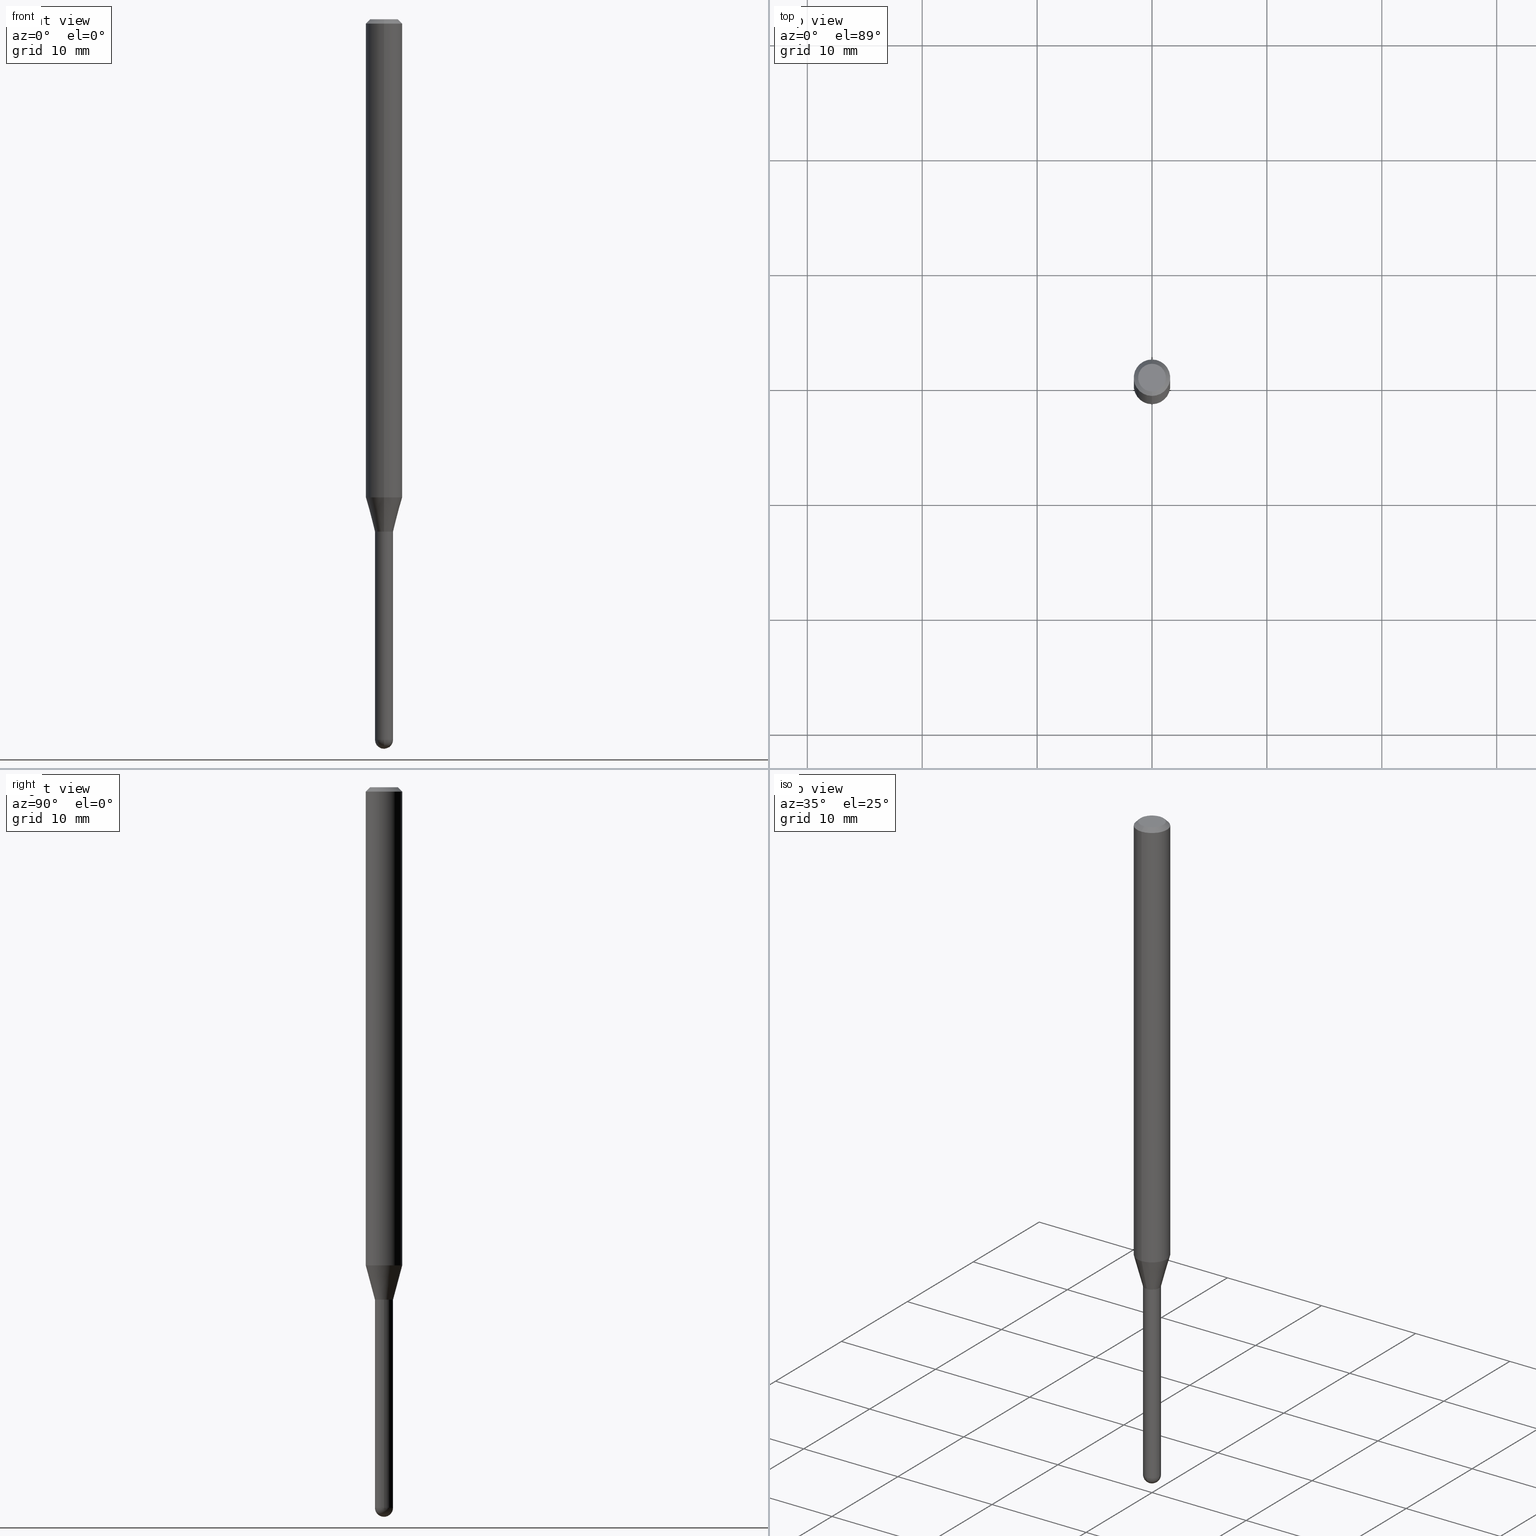
[diagram: canonical four-view strip — front | top / right | iso, engineering-drawing reading convention]
A machine part, canonical four-view strip (front | top / right | iso — engineering-drawing reading convention). The complete STEP part file that produces these views, byte-faithful:
ISO-10303-21;
HEADER;
FILE_DESCRIPTION (( 'STEP AP203' ),
    '1' );
FILE_NAME ('01568.STEP',
    '2024-03-07T19:40:27',
    ( '' ),
    ( '' ),
    'SwSTEP 2.0',
    'SolidWorks 2023',
    '' );
FILE_SCHEMA (( 'CONFIG_CONTROL_DESIGN' ));
ENDSEC;

DATA;
#1 = PERSON_AND_ORGANIZATION_ROLE ( 'design_owner' ) ;
#2 = CARTESIAN_POINT ( 'NONE',  ( 0.03099999999999999978, -6.347513074016838623E-15, -1.756000000000000005 ) ) ;
#3 = ADVANCED_FACE ( 'NONE', ( #134 ), #387, .T. ) ;
#4 = CARTESIAN_POINT ( 'NONE',  ( 0.000000000000000000, 0.000000000000000000, 0.000000000000000000 ) ) ;
#5 = APPROVAL_STATUS ( 'not_yet_approved' ) ;
#6 = AXIS2_PLACEMENT_3D ( 'NONE', #301, #372, #185 ) ;
#7 = CARTESIAN_POINT ( 'NONE',  ( 6.035211466974647334E-29, -8.624263830681084699E-15, -2.469000000000000306 ) ) ;
#8 = CLOSED_SHELL ( 'NONE', ( #101, #153, #241, #342, #433, #482, #247, #256, #371, #384, #284, #490 ) ) ;
#9 = FACE_OUTER_BOUND ( 'NONE', #351, .T. ) ;
#10 = ORIENTED_EDGE ( 'NONE', *, *, #46, .T. ) ;
#11 = CARTESIAN_POINT ( 'NONE',  ( 6.037862482471103495E-29, -8.620467425603728566E-15, -2.469000000000000306 ) ) ;
#12 = CARTESIAN_POINT ( 'NONE',  ( -0.03099999999999999978, 2.202682480856310560E-16, -1.524869877979020612E-30 ) ) ;
#13 = CIRCLE ( 'NONE', #395, 0.03099999999999999978 ) ;
#14 = CARTESIAN_POINT ( 'NONE',  ( 6.037862482471103495E-29, -8.620467425603728566E-15, -2.469000000000000306 ) ) ;
#15 = ORIENTED_EDGE ( 'NONE', *, *, #111, .F. ) ;
#16 = EDGE_CURVE ( 'NONE', #385, #344, #116, .T. ) ;
#17 = FACE_OUTER_BOUND ( 'NONE', #503, .T. ) ;
#18 = ORIENTED_EDGE ( 'NONE', *, *, #111, .T. ) ;
#19 = CARTESIAN_POINT ( 'NONE',  ( 2.167099268456701613E-46, -3.093994851199566925E-32, -8.861623102905458556E-18 ) ) ;
#20 = EDGE_LOOP ( 'NONE', ( #319, #265, #341, #419 ) ) ;
#21 = AXIS2_PLACEMENT_3D ( 'NONE', #271, #430, #390 ) ;
#22 = DESIGN_CONTEXT ( 'detailed design', #289, 'design' ) ;
#23 = CIRCLE ( 'NONE', #165, 0.06250000000000000000 ) ;
#24 = CARTESIAN_POINT ( 'NONE',  ( -2.164718430082314861E-16, -0.03100000000000615805, -1.755500000000000060 ) ) ;
#25 = VERTEX_POINT ( 'NONE', #439 ) ;
#26 = EDGE_CURVE ( 'NONE', #160, #344, #512, .T. ) ;
#27 = DIRECTION ( 'NONE',  ( -2.445487969067625302E-29, 3.491453896504738030E-15, 1.000000000000000000 ) ) ;
#28 = ORIENTED_EDGE ( 'NONE', *, *, #376, .T. ) ;
#29 = DATE_AND_TIME ( #391, #62 ) ;
#30 = EDGE_LOOP ( 'NONE', ( #157, #217, #274, #305 ) ) ;
#31 = CARTESIAN_POINT ( 'NONE',  ( 4.294243223661099859E-29, -6.131041231008564292E-15, -1.756000000000000005 ) ) ;
#32 = AXIS2_PLACEMENT_3D ( 'NONE', #456, #375, #59 ) ;
#33 = DIRECTION ( 'NONE',  ( -6.982962677686265922E-15, -1.000000000000000000, 3.491453896504737636E-15 ) ) ;
#34 = DIRECTION ( 'NONE',  ( -6.982962677686265922E-15, -1.000000000000000000, 3.483106191921935554E-15 ) ) ;
#35 = DIRECTION ( 'NONE',  ( -2.445487969067625302E-29, 3.491453896504738030E-15, 1.000000000000000000 ) ) ;
#36 = PERSON_AND_ORGANIZATION ( #335, #471 ) ;
#37 = CC_DESIGN_PERSON_AND_ORGANIZATION_ASSIGNMENT ( #394, #109, ( #329 ) ) ;
#38 = CARTESIAN_POINT ( 'NONE',  ( 4.293054129698216963E-29, -6.129247315314068840E-15, -1.755500000000000060 ) ) ;
#39 = PERSON_AND_ORGANIZATION_ROLE ( 'creator' ) ;
#40 = ORIENTED_EDGE ( 'NONE', *, *, #331, .F. ) ;
#41 = CARTESIAN_POINT ( 'NONE',  ( 3.668231953601440230E-31, -5.237180844757110571E-17, -0.01500000000000000812 ) ) ;
#42 = EDGE_CURVE ( 'NONE', #226, #163, #286, .T. ) ;
#43 = CYLINDRICAL_SURFACE ( 'NONE', #370, 0.06250000000000000000 ) ;
#44 = LINE ( 'NONE', #330, #45 ) ;
#45 = VECTOR ( 'NONE', #363, 39.37007874015748143 ) ;
#46 = EDGE_CURVE ( 'NONE', #346, #80, #362, .T. ) ;
#47 = CONICAL_SURFACE ( 'NONE', #460, 0.06250000000000000000, 0.7853981633974483900 ) ;
#48 = CARTESIAN_POINT ( 'NONE',  ( -4.364351673553912750E-16, -0.06250000000000005551, -0.01499999999999979128 ) ) ;
#49 = AXIS2_PLACEMENT_3D ( 'NONE', #434, #279, #192 ) ;
#50 = DIRECTION ( 'NONE',  ( -1.000000000000000000, 6.982962677686265922E-15, -4.883557194083112340E-29 ) ) ;
#51 = DIRECTION ( 'NONE',  ( -2.445487969067625302E-29, 3.491453896504738030E-15, 1.000000000000000000 ) ) ;
#52 = DIRECTION ( 'NONE',  ( 5.024295867788190974E-15, 0.7071067811865681119, 0.7071067811865270336 ) ) ;
#53 = DIMENSIONAL_EXPONENTS ( 1.000000000000000000, 0.000000000000000000, 0.000000000000000000, 0.000000000000000000, 0.000000000000000000, 0.000000000000000000, 0.000000000000000000 ) ;
#54 = CC_DESIGN_PERSON_AND_ORGANIZATION_ASSIGNMENT ( #36, #1, ( #466 ) ) ;
#55 = DIRECTION ( 'NONE',  ( 1.000000000000000000, -6.982962677686270655E-15, 0.000000000000000000 ) ) ;
#56 = ORIENTED_EDGE ( 'NONE', *, *, #42, .T. ) ;
#57 = DIRECTION ( 'NONE',  ( -6.982962677686265922E-15, -1.000000000000000000, 3.491453896504737636E-15 ) ) ;
#58 = ORIENTED_EDGE ( 'NONE', *, *, #331, .T. ) ;
#59 = DIRECTION ( 'NONE',  ( 6.982962677686265922E-15, 1.000000000000000000, -3.491453896504738030E-15 ) ) ;
#60 = EDGE_CURVE ( 'NONE', #455, #416, #272, .T. ) ;
#61 = ORIENTED_EDGE ( 'NONE', *, *, #326, .T. ) ;
#62 = LOCAL_TIME ( 14, 40, 27.00000000000000000, #423 ) ;
#63 = DIRECTION ( 'NONE',  ( 1.000000000000000000, -6.982962677686270655E-15, 0.000000000000000000 ) ) ;
#64 = VERTEX_POINT ( 'NONE', #151 ) ;
#65 = ORIENTED_EDGE ( 'NONE', *, *, #199, .T. ) ;
#66 = ADVANCED_BREP_SHAPE_REPRESENTATION ( '01568', ( #426, #424, #245 ), #403 ) ;
#67 = PERSON_AND_ORGANIZATION ( #335, #471 ) ;
#68 = DIRECTION ( 'NONE',  ( -2.445487969067625302E-29, 3.491453896504738030E-15, 1.000000000000000000 ) ) ;
#69 = AXIS2_PLACEMENT_3D ( 'NONE', #169, #125, #448 ) ;
#70 = AXIS2_PLACEMENT_3D ( 'NONE', #231, #428, #34 ) ;
#71 = EDGE_LOOP ( 'NONE', ( #495, #58, #302, #10, #15 ) ) ;
#72 = CARTESIAN_POINT ( 'NONE',  ( 4.294276873682750232E-29, -6.130993042262320648E-15, -1.756000000000000005 ) ) ;
#73 = CC_DESIGN_DATE_AND_TIME_ASSIGNMENT ( #191, #474, ( #441 ) ) ;
#74 = APPROVAL_STATUS ( 'not_yet_approved' ) ;
#75 = FACE_OUTER_BOUND ( 'NONE', #115, .T. ) ;
#76 = ORIENTED_EDGE ( 'NONE', *, *, #462, .T. ) ;
#77 = PERSON_AND_ORGANIZATION_ROLE ( 'creator' ) ;
#78 = ORIENTED_EDGE ( 'NONE', *, *, #393, .T. ) ;
#79 = CARTESIAN_POINT ( 'NONE',  ( 4.294276873682750232E-29, -6.130993042262320648E-15, -1.756000000000000005 ) ) ;
#80 = VERTEX_POINT ( 'NONE', #2 ) ;
#81 = ADVANCED_FACE ( 'NONE', ( #75 ), #161, .T. ) ;
#82 = CIRCLE ( 'NONE', #220, 0.03049999999999999586 ) ;
#83 = LOCAL_TIME ( 14, 40, 27.00000000000000000, #295 ) ;
#84 = VERTEX_POINT ( 'NONE', #148 ) ;
#85 = FACE_OUTER_BOUND ( 'NONE', #178, .T. ) ;
#86 = DIRECTION ( 'NONE',  ( -2.445468806185136597E-29, 3.491481338843145583E-15, 1.000000000000000000 ) ) ;
#87 = DIRECTION ( 'NONE',  ( 1.000000000000000000, -6.982962677686265922E-15, 4.883557194083112340E-29 ) ) ;
#88 = CIRCLE ( 'NONE', #202, 0.06250000000000000000 ) ;
#89 = CARTESIAN_POINT ( 'NONE',  ( -2.164718430082737148E-16, -0.03099999999999992345, 1.082350707916466046E-16 ) ) ;
#90 = CC_DESIGN_PERSON_AND_ORGANIZATION_ASSIGNMENT ( #67, #350, ( #494 ) ) ;
#91 = CARTESIAN_POINT ( 'NONE',  ( 4.294276873682750232E-29, -6.130993042262320648E-15, -1.756000000000000005 ) ) ;
#92 = CARTESIAN_POINT ( 'NONE',  ( 4.294276873682750232E-29, -6.130993042262320648E-15, -1.756000000000000005 ) ) ;
#93 = EDGE_CURVE ( 'NONE', #99, #196, #313, .T. ) ;
#94 = SHAPE_DEFINITION_REPRESENTATION ( #422, #66 ) ;
#95 = DIRECTION ( 'NONE',  ( -6.982962677686265922E-15, -1.000000000000000000, 0.000000000000000000 ) ) ;
#96 = AXIS2_PLACEMENT_3D ( 'NONE', #449, #27, #95 ) ;
#97 = ORIENTED_EDGE ( 'NONE', *, *, #407, .F. ) ;
#98 = DIRECTION ( 'NONE',  ( -2.445468806185136597E-29, 3.491481338843145583E-15, 1.000000000000000000 ) ) ;
#99 = VERTEX_POINT ( 'NONE', #315 ) ;
#100 = ORIENTED_EDGE ( 'NONE', *, *, #293, .T. ) ;
#101 = ADVANCED_FACE ( 'NONE', ( #85 ), #201, .F. ) ;
#102 = DIRECTION ( 'NONE',  ( -2.445468806185136597E-29, 3.491481338843145583E-15, 1.000000000000000000 ) ) ;
#103 = VERTEX_POINT ( 'NONE', #355 ) ;
#104 = DIRECTION ( 'NONE',  ( -6.982962677686265922E-15, -1.000000000000000000, 3.491453896504738030E-15 ) ) ;
#105 = ORIENTED_EDGE ( 'NONE', *, *, #199, .F. ) ;
#106 = APPROVAL ( #5, 'UNSPECIFIED' ) ;
#107 = LENGTH_MEASURE_WITH_UNIT ( LENGTH_MEASURE( 0.02539999999999999897 ), #235 );
#108 = ORIENTED_EDGE ( 'NONE', *, *, #400, .T. ) ;
#109 = PERSON_AND_ORGANIZATION_ROLE ( 'design_supplier' ) ;
#110 = DIRECTION ( 'NONE',  ( -2.445487969067625302E-29, 3.491453896504738030E-15, 1.000000000000000000 ) ) ;
#111 = EDGE_CURVE ( 'NONE', #25, #80, #473, .T. ) ;
#112 = DATE_AND_TIME ( #467, #175 ) ;
#113 = CARTESIAN_POINT ( 'NONE',  ( 4.293054129698216963E-29, -6.129247315314068840E-15, -1.755500000000000060 ) ) ;
#114 = AXIS2_PLACEMENT_3D ( 'NONE', #31, #505, #204 ) ;
#115 = EDGE_LOOP ( 'NONE', ( #491, #507, #189, #334, #144 ) ) ;
#116 = CIRCLE ( 'NONE', #431, 0.03099999999999992345 ) ;
#117 = DIRECTION ( 'NONE',  ( -2.445468806185136877E-29, 3.491481338843145188E-15, 1.000000000000000000 ) ) ;
#118 = EDGE_CURVE ( 'NONE', #344, #385, #248, .T. ) ;
#119 = DIRECTION ( 'NONE',  ( -6.982962677686265922E-15, -1.000000000000000000, 4.370956789862821150E-15 ) ) ;
#120 = DIRECTION ( 'NONE',  ( -2.445487969067625302E-29, 3.491453896504738030E-15, 1.000000000000000000 ) ) ;
#121 = AXIS2_PLACEMENT_3D ( 'NONE', #205, #447, #480 ) ;
#122 = EDGE_LOOP ( 'NONE', ( #333, #18 ) ) ;
#123 = LINE ( 'NONE', #89, #264 ) ;
#124 = LINE ( 'NONE', #282, #208 ) ;
#125 = DIRECTION ( 'NONE',  ( -2.445468806185136597E-29, 3.491481338843145583E-15, 1.000000000000000000 ) ) ;
#126 = APPROVAL ( #436, 'UNSPECIFIED' ) ;
#127 = CONICAL_SURFACE ( 'NONE', #96, 0.03099999999999992345, 0.2617993877991570129 ) ;
#128 = DIRECTION ( 'NONE',  ( -6.982962677686265922E-15, -1.000000000000000000, 3.491453896504738030E-15 ) ) ;
#129 = EDGE_CURVE ( 'NONE', #337, #196, #358, .T. ) ;
#130 = DIRECTION ( 'NONE',  ( -2.445487969067625302E-29, 3.491453896504738030E-15, 1.000000000000000000 ) ) ;
#131 = PLANE ( 'NONE',  #32 ) ;
#132 = EDGE_LOOP ( 'NONE', ( #105, #221 ) ) ;
#133 = CARTESIAN_POINT ( 'NONE',  ( -0.03099999999999999978, -7.155486080220514781E-15, -2.469000000000000306 ) ) ;
#134 = FACE_OUTER_BOUND ( 'NONE', #71, .T. ) ;
#135 = EDGE_CURVE ( 'NONE', #99, #463, #492, .T. ) ;
#136 = AXIS2_PLACEMENT_3D ( 'NONE', #232, #322, #475 ) ;
#137 = ORIENTED_EDGE ( 'NONE', *, *, #129, .T. ) ;
#138 = DIRECTION ( 'NONE',  ( -2.445487969067625302E-29, 3.491453896504738030E-15, 1.000000000000000000 ) ) ;
#139 = ORIENTED_EDGE ( 'NONE', *, *, #280, .F. ) ;
#140 = LINE ( 'NONE', #373, #281 ) ;
#141 = ORIENTED_EDGE ( 'NONE', *, *, #421, .T. ) ;
#142 = CC_DESIGN_DATE_AND_TIME_ASSIGNMENT ( #112, #270, ( #494 ) ) ;
#143 = PLANE ( 'NONE',  #316 ) ;
#144 = ORIENTED_EDGE ( 'NONE', *, *, #412, .T. ) ;
#145 = CIRCLE ( 'NONE', #307, 0.04749999999999999362 ) ;
#146 = COORDINATED_UNIVERSAL_TIME_OFFSET ( 5, 0, .BEHIND. ) ;
#147 = EDGE_CURVE ( 'NONE', #84, #196, #23, .T. ) ;
#148 = CARTESIAN_POINT ( 'NONE',  ( 4.440892098501028481E-16, 0.06249999999999995143, -0.01500000000000022669 ) ) ;
#149 = DIRECTION ( 'NONE',  ( -6.982962677686265922E-15, -1.000000000000000000, 0.000000000000000000 ) ) ;
#150 =( NAMED_UNIT ( * ) PLANE_ANGLE_UNIT ( ) SI_UNIT ( $, .RADIAN. ) );
#151 = CARTESIAN_POINT ( 'NONE',  ( 3.840629472727447874E-16, 0.04749999999999999362, -1.747056831868805136E-16 ) ) ;
#152 = ORIENTED_EDGE ( 'NONE', *, *, #206, .F. ) ;
#153 = ADVANCED_FACE ( 'NONE', ( #349 ), #357, .T. ) ;
#154 = AXIS2_PLACEMENT_3D ( 'NONE', #209, #367, #327 ) ;
#155 = APPROVAL_PERSON_ORGANIZATION ( #398, #106, #290 ) ;
#156 = APPROVAL_DATE_TIME ( #29, #352 ) ;
#157 = ORIENTED_EDGE ( 'NONE', *, *, #206, .T. ) ;
#158 = CARTESIAN_POINT ( 'NONE',  ( 4.006786285162205209E-29, -5.720539117240072131E-15, -1.638440399561583716 ) ) ;
#159 = COORDINATED_UNIVERSAL_TIME_OFFSET ( 5, 0, .BEHIND. ) ;
#160 = VERTEX_POINT ( 'NONE', #229 ) ;
#161 = CYLINDRICAL_SURFACE ( 'NONE', #453, 0.03099999999999999978 ) ;
#162 = PRODUCT_RELATED_PRODUCT_CATEGORY ( 'detail', '', ( #466 ) ) ;
#163 = VERTEX_POINT ( 'NONE', #353 ) ;
#164 = DIRECTION ( 'NONE',  ( -6.982962677686265922E-15, -1.000000000000000000, 0.000000000000000000 ) ) ;
#165 = AXIS2_PLACEMENT_3D ( 'NONE', #41, #110, #276 ) ;
#166 = CONICAL_SURFACE ( 'NONE', #438, 0.03099999999999992345, 0.2617993877991570129 ) ;
#167 = CC_DESIGN_SECURITY_CLASSIFICATION ( #494, ( #329 ) ) ;
#168 = VECTOR ( 'NONE', #117, 39.37007874015748143 ) ;
#169 = CARTESIAN_POINT ( 'NONE',  ( 6.037862482471103495E-29, -8.620467425603728566E-15, -2.469000000000000306 ) ) ;
#170 = ADVANCED_FACE ( 'NONE', ( #195 ), #506, .F. ) ;
#171 = DIRECTION ( 'NONE',  ( 6.982962677686265922E-15, 1.000000000000000000, 0.000000000000000000 ) ) ;
#172 = CYLINDRICAL_SURFACE ( 'NONE', #348, 0.06250000000000000000 ) ;
#173 = EDGE_CURVE ( 'NONE', #103, #346, #228, .T. ) ;
#174 = AXIS2_PLACEMENT_3D ( 'NONE', #259, #222, #261 ) ;
#175 = LOCAL_TIME ( 14, 40, 27.00000000000000000, #312 ) ;
#176 = CARTESIAN_POINT ( 'NONE',  ( 4.294276873682750232E-29, -6.130993042262320648E-15, -1.756000000000000005 ) ) ;
#177 = CARTESIAN_POINT ( 'NONE',  ( 4.440892098501024536E-16, 0.06249999999999425460, -1.638440399561583938 ) ) ;
#178 = EDGE_LOOP ( 'NONE', ( #184, #374, #223, #411 ) ) ;
#179 = CARTESIAN_POINT ( 'NONE',  ( 4.364351673553919652E-16, 0.06249999999999995143, -0.01500000000000022669 ) ) ;
#180 = ORIENTED_EDGE ( 'NONE', *, *, #407, .T. ) ;
#181 = FACE_OUTER_BOUND ( 'NONE', #457, .T. ) ;
#182 = CIRCLE ( 'NONE', #469, 0.03099999999999992345 ) ;
#183 = CONICAL_SURFACE ( 'NONE', #504, 0.03049999999999999586, 0.7853981633974739252 ) ;
#184 = ORIENTED_EDGE ( 'NONE', *, *, #42, .F. ) ;
#185 = DIRECTION ( 'NONE',  ( -7.105427357601001070E-15, -1.000000000000000000, 0.000000000000000000 ) ) ;
#186 = ORIENTED_EDGE ( 'NONE', *, *, #326, .F. ) ;
#187 = APPLICATION_CONTEXT ( 'configuration controlled 3d designs of mechanical parts and assemblies' ) ;
#188 = CYLINDRICAL_SURFACE ( 'NONE', #452, 0.03099999999999992345 ) ;
#189 = ORIENTED_EDGE ( 'NONE', *, *, #479, .F. ) ;
#190 = EDGE_CURVE ( 'NONE', #226, #385, #44, .T. ) ;
#191 = DATE_AND_TIME ( #461, #417 ) ;
#192 = DIRECTION ( 'NONE',  ( 1.000000000000000000, -6.982962677686270655E-15, 0.000000000000000000 ) ) ;
#193 = VECTOR ( 'NONE', #306, 39.37007874015748143 ) ;
#194 = APPROVAL_DATE_TIME ( #356, #126 ) ;
#195 = FACE_OUTER_BOUND ( 'NONE', #122, .T. ) ;
#196 = VERTEX_POINT ( 'NONE', #48 ) ;
#197 =( NAMED_UNIT ( * ) SI_UNIT ( $, .STERADIAN. ) SOLID_ANGLE_UNIT ( ) );
#198 = DIRECTION ( 'NONE',  ( -2.445487969067625302E-29, 3.491453896504738030E-15, 1.000000000000000000 ) ) ;
#199 = EDGE_CURVE ( 'NONE', #160, #488, #338, .T. ) ;
#200 = APPLICATION_PROTOCOL_DEFINITION ( 'international standard', 'config_control_design', 1994, #289 ) ;
#201 = CYLINDRICAL_SURFACE ( 'NONE', #365, 0.03099999999999992345 ) ;
#202 = AXIS2_PLACEMENT_3D ( 'NONE', #210, #478, #211 ) ;
#203 = SECURITY_CLASSIFICATION_LEVEL ( 'unclassified' ) ;
#204 = DIRECTION ( 'NONE',  ( 1.000000000000000000, -6.982962677686270655E-15, 0.000000000000000000 ) ) ;
#205 = CARTESIAN_POINT ( 'NONE',  ( 2.167099268456701613E-46, -3.093994851199566925E-32, -8.861623102905458556E-18 ) ) ;
#206 = EDGE_CURVE ( 'NONE', #163, #226, #182, .T. ) ;
#207 = FACE_OUTER_BOUND ( 'NONE', #260, .T. ) ;
#208 = VECTOR ( 'NONE', #440, 39.37007874015748854 ) ;
#209 = CARTESIAN_POINT ( 'NONE',  ( 3.668231953601440230E-31, -5.237180844757110571E-17, -0.01500000000000000812 ) ) ;
#210 = CARTESIAN_POINT ( 'NONE',  ( 4.006786285162205209E-29, -5.720539117240072131E-15, -1.638440399561583716 ) ) ;
#211 = DIRECTION ( 'NONE',  ( -6.982962677686265922E-15, -1.000000000000000000, 4.370956789862821150E-15 ) ) ;
#212 = CALENDAR_DATE ( 2024, 7, 3 ) ;
#213 = DIRECTION ( 'NONE',  ( -6.982962677686265922E-15, -1.000000000000000000, 0.000000000000000000 ) ) ;
#214 = CARTESIAN_POINT ( 'NONE',  ( 6.112346507714613972E-29, -8.730601549646543009E-15, -2.500000000000000000 ) ) ;
#215 = EDGE_LOOP ( 'NONE', ( #294, #139, #28, #309 ) ) ;
#216 = DIRECTION ( 'NONE',  ( -1.807323732225375499E-15, -0.2588190451025246808, 0.9659258262890673130 ) ) ;
#217 = ORIENTED_EDGE ( 'NONE', *, *, #303, .T. ) ;
#218 = UNCERTAINTY_MEASURE_WITH_UNIT (LENGTH_MEASURE( 1.000000000000000082E-05 ), #508, 'distance_accuracy_value', 'NONE');
#219 = DIRECTION ( 'NONE',  ( -6.982962677686266711E-15, -1.000000000000000000, 3.491453896504738819E-15 ) ) ;
#220 = AXIS2_PLACEMENT_3D ( 'NONE', #292, #304, #298 ) ;
#221 = ORIENTED_EDGE ( 'NONE', *, *, #462, .F. ) ;
#222 = DIRECTION ( 'NONE',  ( -1.000000000000000000, 6.982962677686265922E-15, -4.883557194083112340E-29 ) ) ;
#223 = ORIENTED_EDGE ( 'NONE', *, *, #16, .T. ) ;
#224 = ADVANCED_FACE ( 'NONE', ( #207 ), #364, .T. ) ;
#225 = DIRECTION ( 'NONE',  ( 0.000000000000000000, 0.000000000000000000, 1.000000000000000000 ) ) ;
#226 = VERTEX_POINT ( 'NONE', #240 ) ;
#227 = PERSON_AND_ORGANIZATION ( #335, #471 ) ;
#228 = CIRCLE ( 'NONE', #69, 0.03099999999999999978 ) ;
#229 = CARTESIAN_POINT ( 'NONE',  ( -2.129803616693881339E-16, -0.03050000000000612638, -1.756000000000000005 ) ) ;
#230 = VECTOR ( 'NONE', #291, 39.37007874015748143 ) ;
#231 = CARTESIAN_POINT ( 'NONE',  ( 3.668231953601440230E-31, -5.237180844757110571E-17, -0.01500000000000000812 ) ) ;
#232 = CARTESIAN_POINT ( 'NONE',  ( 0.000000000000000000, 0.000000000000000000, 0.000000000000000000 ) ) ;
#233 = APPROVAL_ROLE ( '' ) ;
#234 = DIRECTION ( 'NONE',  ( -2.445468806185136597E-29, 3.491481338843145583E-15, 1.000000000000000000 ) ) ;
#235 =( LENGTH_UNIT ( ) NAMED_UNIT ( * ) SI_UNIT ( $, .METRE. ) );
#236 = EDGE_LOOP ( 'NONE', ( #255, #152, #100, #377 ) ) ;
#237 = DIRECTION ( 'NONE',  ( -6.982962677686265922E-15, -1.000000000000000000, 0.000000000000000000 ) ) ;
#238 = ORIENTED_EDGE ( 'NONE', *, *, #280, .T. ) ;
#239 = CIRCLE ( 'NONE', #366, 0.03099999999999987835 ) ;
#240 = CARTESIAN_POINT ( 'NONE',  ( 3.321787289678881034E-16, 0.03099999999999378947, -1.756000000000000005 ) ) ;
#241 = ADVANCED_FACE ( 'NONE', ( #324 ), #47, .T. ) ;
#242 = DIRECTION ( 'NONE',  ( 1.000000000000000000, -6.982962677686270655E-15, 0.000000000000000000 ) ) ;
#243 = CARTESIAN_POINT ( 'NONE',  ( 6.035211466974647334E-29, -8.624263830681084699E-15, -2.469000000000000306 ) ) ;
#244 = AXIS2_PLACEMENT_3D ( 'NONE', #7, #50, #171 ) ;
#245 = AXIS2_PLACEMENT_3D ( 'NONE', #361, #225, #275 ) ;
#246 = APPROVAL_PERSON_ORGANIZATION ( #386, #126, #310 ) ;
#247 = ADVANCED_FACE ( 'NONE', ( #250 ), #43, .T. ) ;
#248 = CIRCLE ( 'NONE', #402, 0.03099999999999992345 ) ;
#249 = DIRECTION ( 'NONE',  ( -2.445487969067625582E-29, 3.491453896504738030E-15, 1.000000000000000000 ) ) ;
#250 = FACE_OUTER_BOUND ( 'NONE', #500, .T. ) ;
#251 = LINE ( 'NONE', #409, #485 ) ;
#252 = CC_DESIGN_PERSON_AND_ORGANIZATION_ASSIGNMENT ( #464, #77, ( #329 ) ) ;
#253 = CARTESIAN_POINT ( 'NONE',  ( 0.03099999999999999978, -7.592226171314421154E-15, -2.469000000000000306 ) ) ;
#254 = AXIS2_PLACEMENT_3D ( 'NONE', #72, #311, #149 ) ;
#255 = ORIENTED_EDGE ( 'NONE', *, *, #190, .F. ) ;
#256 = ADVANCED_FACE ( 'NONE', ( #406 ), #429, .T. ) ;
#257 = ORIENTED_EDGE ( 'NONE', *, *, #118, .F. ) ;
#258 = EDGE_LOOP ( 'NONE', ( #97, #137, #323, #459 ) ) ;
#259 = CARTESIAN_POINT ( 'NONE',  ( 6.035211466974647334E-29, -8.624263830681084699E-15, -2.469000000000000306 ) ) ;
#260 = EDGE_LOOP ( 'NONE', ( #420, #61, #382, #266 ) ) ;
#261 = DIRECTION ( 'NONE',  ( 6.982962677686265922E-15, 1.000000000000000000, 0.000000000000000000 ) ) ;
#262 = CIRCLE ( 'NONE', #121, 0.04749999999999999362 ) ;
#263 = EDGE_CURVE ( 'NONE', #463, #99, #88, .T. ) ;
#264 = VECTOR ( 'NONE', #249, 39.37007874015748143 ) ;
#265 = ORIENTED_EDGE ( 'NONE', *, *, #446, .T. ) ;
#266 = ORIENTED_EDGE ( 'NONE', *, *, #173, .F. ) ;
#267 = PERSON_AND_ORGANIZATION ( #335, #471 ) ;
#268 = CARTESIAN_POINT ( 'NONE',  ( 0.03099999999999999978, -2.164718430082742572E-16, 1.511614800496739984E-30 ) ) ;
#269 = ORIENTED_EDGE ( 'NONE', *, *, #303, .F. ) ;
#270 = DATE_TIME_ROLE ( 'classification_date' ) ;
#271 = CARTESIAN_POINT ( 'NONE',  ( 2.164718430083171761E-16, 0.03099999999999386927, -1.756000000000000005 ) ) ;
#272 = CIRCLE ( 'NONE', #49, 0.03099999999999999978 ) ;
#273 = CARTESIAN_POINT ( 'NONE',  ( 0.000000000000000000, 0.000000000000000000, 0.000000000000000000 ) ) ;
#274 = ORIENTED_EDGE ( 'NONE', *, *, #135, .F. ) ;
#275 = DIRECTION ( 'NONE',  ( 1.000000000000000000, 0.000000000000000000, 0.000000000000000000 ) ) ;
#276 = DIRECTION ( 'NONE',  ( -6.982962677686265922E-15, -1.000000000000000000, 3.483106191921935554E-15 ) ) ;
#277 = DATE_AND_TIME ( #212, #83 ) ;
#278 = ORIENTED_EDGE ( 'NONE', *, *, #421, .F. ) ;
#279 = DIRECTION ( 'NONE',  ( -2.445468806185136597E-29, 3.491481338843145583E-15, 1.000000000000000000 ) ) ;
#280 = EDGE_CURVE ( 'NONE', #64, #337, #262, .T. ) ;
#281 = VECTOR ( 'NONE', #487, 39.37007874015748143 ) ;
#282 = CARTESIAN_POINT ( 'NONE',  ( 2.202682480856734080E-16, 0.03099999999999379294, -1.756000000000000005 ) ) ;
#283 = DIRECTION ( 'NONE',  ( 6.982962677686265922E-15, 1.000000000000000000, -3.483106191921935554E-15 ) ) ;
#284 = ADVANCED_FACE ( 'NONE', ( #9 ), #183, .T. ) ;
#285 = CARTESIAN_POINT ( 'NONE',  ( 3.668231953601440230E-31, -5.237180844757110571E-17, -0.01500000000000000812 ) ) ;
#286 = CIRCLE ( 'NONE', #254, 0.03099999999999992345 ) ;
#287 = APPROVAL_PERSON_ORGANIZATION ( #227, #352, #233 ) ;
#288 = CARTESIAN_POINT ( 'NONE',  ( -3.773273898774340269E-16, -0.04749999999999999362, 1.569824369810696150E-16 ) ) ;
#289 = APPLICATION_CONTEXT ( 'configuration controlled 3d designs of mechanical parts and assemblies' ) ;
#290 = APPROVAL_ROLE ( '' ) ;
#291 = DIRECTION ( 'NONE',  ( -2.445468806185136877E-29, 3.491481338843145188E-15, 1.000000000000000000 ) ) ;
#292 = CARTESIAN_POINT ( 'NONE',  ( 4.294276873682750232E-29, -6.130993042262320648E-15, -1.756000000000000005 ) ) ;
#293 = EDGE_CURVE ( 'NONE', #163, #344, #123, .T. ) ;
#294 = ORIENTED_EDGE ( 'NONE', *, *, #129, .F. ) ;
#295 = COORDINATED_UNIVERSAL_TIME_OFFSET ( 5, 0, .BEHIND. ) ;
#296 = AXIS2_PLACEMENT_3D ( 'NONE', #79, #68, #237 ) ;
#297 = AXIS2_PLACEMENT_3D ( 'NONE', #458, #98, #63 ) ;
#298 = DIRECTION ( 'NONE',  ( -6.982962677686265922E-15, -1.000000000000000000, 0.000000000000000000 ) ) ;
#299 = ORIENTED_EDGE ( 'NONE', *, *, #93, .T. ) ;
#300 = ORIENTED_EDGE ( 'NONE', *, *, #60, .F. ) ;
#301 = CARTESIAN_POINT ( 'NONE',  ( 6.035211466974647334E-29, -8.624263830681084699E-15, -2.469000000000000306 ) ) ;
#302 = ORIENTED_EDGE ( 'NONE', *, *, #173, .T. ) ;
#303 = EDGE_CURVE ( 'NONE', #226, #463, #124, .T. ) ;
#304 = DIRECTION ( 'NONE',  ( -2.445487969067625302E-29, 3.491453896504738030E-15, 1.000000000000000000 ) ) ;
#305 = ORIENTED_EDGE ( 'NONE', *, *, #393, .F. ) ;
#306 = DIRECTION ( 'NONE',  ( 4.937700262164548042E-15, 0.7071067811865451302, -0.7071067811865499042 ) ) ;
#307 = AXIS2_PLACEMENT_3D ( 'NONE', #19, #138, #219 ) ;
#308 = LOCAL_TIME ( 14, 40, 27.00000000000000000, #159 ) ;
#309 = ORIENTED_EDGE ( 'NONE', *, *, #147, .T. ) ;
#310 = APPROVAL_ROLE ( '' ) ;
#311 = DIRECTION ( 'NONE',  ( -2.445487969067625302E-29, 3.491453896504738030E-15, 1.000000000000000000 ) ) ;
#312 = COORDINATED_UNIVERSAL_TIME_OFFSET ( 5, 0, .BEHIND. ) ;
#313 = LINE ( 'NONE', #396, #404 ) ;
#314 = AXIS2_PLACEMENT_3D ( 'NONE', #158, #320, #119 ) ;
#315 = CARTESIAN_POINT ( 'NONE',  ( -4.364351673553516840E-16, -0.06250000000000574540, -1.638440399561583494 ) ) ;
#316 = AXIS2_PLACEMENT_3D ( 'NONE', #92, #489, #104 ) ;
#317 = CC_DESIGN_APPROVAL ( #126, ( #329 ) ) ;
#318 = ORIENTED_EDGE ( 'NONE', *, *, #26, .F. ) ;
#319 = ORIENTED_EDGE ( 'NONE', *, *, #135, .T. ) ;
#320 = DIRECTION ( 'NONE',  ( -2.445487969067625302E-29, 3.491453896504738030E-15, 1.000000000000000000 ) ) ;
#321 = EDGE_CURVE ( 'NONE', #416, #25, #369, .T. ) ;
#322 = DIRECTION ( 'NONE',  ( -2.445468806185136597E-29, 3.491481338843145583E-15, 1.000000000000000000 ) ) ;
#323 = ORIENTED_EDGE ( 'NONE', *, *, #501, .T. ) ;
#324 = FACE_OUTER_BOUND ( 'NONE', #258, .T. ) ;
#325 = VECTOR ( 'NONE', #52, 39.37007874015748143 ) ;
#326 = EDGE_CURVE ( 'NONE', #354, #455, #239, .T. ) ;
#327 = DIRECTION ( 'NONE',  ( 6.982962677686265922E-15, 1.000000000000000000, -3.483106191921935554E-15 ) ) ;
#328 = CARTESIAN_POINT ( 'NONE',  ( 0.000000000000000000, 0.000000000000000000, 0.000000000000000000 ) ) ;
#329 = PRODUCT_DEFINITION_FORMATION_WITH_SPECIFIED_SOURCE ( 'ANY', '', #466, .NOT_KNOWN. ) ;
#330 = CARTESIAN_POINT ( 'NONE',  ( 2.202682480856304644E-16, 0.03099999999999992345, -1.082350707916466046E-16 ) ) ;
#331 = EDGE_CURVE ( 'NONE', #416, #103, #13, .T. ) ;
#332 = CARTESIAN_POINT ( 'NONE',  ( 2.184918912462734271E-16, 0.03049999999999386882, -1.756000000000000005 ) ) ;
#333 = ORIENTED_EDGE ( 'NONE', *, *, #479, .T. ) ;
#334 = ORIENTED_EDGE ( 'NONE', *, *, #46, .F. ) ;
#335 = PERSON ( 'UNSPECIFIED', 'UNSPECIFIED', 'UNSPECIFIED', ('UNSPECIFIED'), ('UNSPECIFIED'), ('UNSPECIFIED') ) ;
#336 = SPHERICAL_SURFACE ( 'NONE', #174, 0.03099999999999987835 ) ;
#337 = VERTEX_POINT ( 'NONE', #288 ) ;
#338 = CIRCLE ( 'NONE', #378, 0.03049999999999999586 ) ;
#339 = CARTESIAN_POINT ( 'NONE',  ( 2.202682480856726685E-16, 0.03099999999999368538, -1.755500000000000060 ) ) ;
#340 = CLOSED_SHELL ( 'NONE', ( #81, #360, #170, #224, #3 ) ) ;
#341 = ORIENTED_EDGE ( 'NONE', *, *, #501, .F. ) ;
#342 = ADVANCED_FACE ( 'NONE', ( #399 ), #172, .T. ) ;
#343 = LINE ( 'NONE', #179, #193 ) ;
#344 = VERTEX_POINT ( 'NONE', #24 ) ;
#345 = CARTESIAN_POINT ( 'NONE',  ( 0.000000000000000000, 0.000000000000000000, 0.000000000000000000 ) ) ;
#346 = VERTEX_POINT ( 'NONE', #253 ) ;
#347 = CALENDAR_DATE ( 2024, 7, 3 ) ;
#348 = AXIS2_PLACEMENT_3D ( 'NONE', #328, #483, #128 ) ;
#349 = FACE_OUTER_BOUND ( 'NONE', #380, .T. ) ;
#350 = PERSON_AND_ORGANIZATION_ROLE ( 'classification_officer' ) ;
#351 = EDGE_LOOP ( 'NONE', ( #278, #76, #451, #389 ) ) ;
#352 = APPROVAL ( #74, 'UNSPECIFIED' ) ;
#353 = CARTESIAN_POINT ( 'NONE',  ( -2.164718430082307712E-16, -0.03100000000000605049, -1.756000000000000005 ) ) ;
#354 = VERTEX_POINT ( 'NONE', #214 ) ;
#355 = CARTESIAN_POINT ( 'NONE',  ( -2.202682480855702151E-16, -0.03100000000000856237, -2.469000000000000306 ) ) ;
#356 = DATE_AND_TIME ( #347, #308 ) ;
#357 = CONICAL_SURFACE ( 'NONE', #296, 0.03049999999999999586, 0.7853981633974739252 ) ;
#358 = LINE ( 'NONE', #509, #510 ) ;
#359 = CC_DESIGN_APPROVAL ( #352, ( #441 ) ) ;
#360 = ADVANCED_FACE ( 'NONE', ( #181 ), #336, .T. ) ;
#361 = CARTESIAN_POINT ( 'NONE',  ( 0.000000000000000000, 0.000000000000000000, 0.000000000000000000 ) ) ;
#362 = LINE ( 'NONE', #268, #168 ) ;
#363 = DIRECTION ( 'NONE',  ( -2.445487969067625582E-29, 3.491453896504738030E-15, 1.000000000000000000 ) ) ;
#364 = SPHERICAL_SURFACE ( 'NONE', #244, 0.03099999999999987835 ) ;
#365 = AXIS2_PLACEMENT_3D ( 'NONE', #465, #198, #33 ) ;
#366 = AXIS2_PLACEMENT_3D ( 'NONE', #243, #87, #368 ) ;
#367 = DIRECTION ( 'NONE',  ( 2.445487969067625302E-29, -3.491453896504738030E-15, -1.000000000000000000 ) ) ;
#368 = DIRECTION ( 'NONE',  ( 6.982962677686265922E-15, 1.000000000000000000, 0.000000000000000000 ) ) ;
#369 = LINE ( 'NONE', #12, #230 ) ;
#370 = AXIS2_PLACEMENT_3D ( 'NONE', #4, #51, #405 ) ;
#371 = ADVANCED_FACE ( 'NONE', ( #17 ), #131, .F. ) ;
#372 = DIRECTION ( 'NONE',  ( -1.000000000000000000, 7.105427357601001070E-15, -4.926315508542082329E-29 ) ) ;
#373 = CARTESIAN_POINT ( 'NONE',  ( 4.440892098500625669E-16, 0.06250000000000000000, -2.182158685315461269E-16 ) ) ;
#374 = ORIENTED_EDGE ( 'NONE', *, *, #190, .T. ) ;
#375 = DIRECTION ( 'NONE',  ( 2.445487969067625022E-29, -3.491453896504738030E-15, -1.000000000000000000 ) ) ;
#376 = EDGE_CURVE ( 'NONE', #64, #84, #343, .T. ) ;
#377 = ORIENTED_EDGE ( 'NONE', *, *, #118, .T. ) ;
#378 = AXIS2_PLACEMENT_3D ( 'NONE', #176, #442, #164 ) ;
#379 = CARTESIAN_POINT ( 'NONE',  ( 4.294276873682750232E-29, -6.130993042262320648E-15, -1.756000000000000005 ) ) ;
#380 = EDGE_LOOP ( 'NONE', ( #65, #141, #257, #318 ) ) ;
#381 = FACE_OUTER_BOUND ( 'NONE', #30, .T. ) ;
#382 = ORIENTED_EDGE ( 'NONE', *, *, #412, .F. ) ;
#383 = DIRECTION ( 'NONE',  ( -6.982962677686265922E-15, -1.000000000000000000, 0.000000000000000000 ) ) ;
#384 = ADVANCED_FACE ( 'NONE', ( #502 ), #143, .F. ) ;
#385 = VERTEX_POINT ( 'NONE', #339 ) ;
#386 = PERSON_AND_ORGANIZATION ( #335, #471 ) ;
#387 = CYLINDRICAL_SURFACE ( 'NONE', #136, 0.03099999999999999978 ) ;
#388 = MECHANICAL_CONTEXT ( 'NONE', #187, 'mechanical' ) ;
#389 = ORIENTED_EDGE ( 'NONE', *, *, #16, .F. ) ;
#390 = DIRECTION ( 'NONE',  ( -1.000000000000000000, 6.982962677686265922E-15, -4.876176775795935793E-29 ) ) ;
#391 = CALENDAR_DATE ( 2024, 7, 3 ) ;
#392 = DIRECTION ( 'NONE',  ( -6.982962677686265922E-15, -1.000000000000000000, 0.000000000000000000 ) ) ;
#393 = EDGE_CURVE ( 'NONE', #163, #99, #251, .T. ) ;
#394 = PERSON_AND_ORGANIZATION ( #335, #471 ) ;
#395 = AXIS2_PLACEMENT_3D ( 'NONE', #11, #86, #242 ) ;
#396 = CARTESIAN_POINT ( 'NONE',  ( -4.364351673553916201E-16, -0.06250000000000000000, 2.182158685315461269E-16 ) ) ;
#397 = DIRECTION ( 'NONE',  ( 2.445487969067625302E-29, -3.491453896504738030E-15, -1.000000000000000000 ) ) ;
#398 = PERSON_AND_ORGANIZATION ( #335, #471 ) ;
#399 = FACE_OUTER_BOUND ( 'NONE', #20, .T. ) ;
#400 = EDGE_CURVE ( 'NONE', #354, #103, #477, .T. ) ;
#401 = DIRECTION ( 'NONE',  ( -6.982962677686265922E-15, -1.000000000000000000, 0.000000000000000000 ) ) ;
#402 = AXIS2_PLACEMENT_3D ( 'NONE', #113, #120, #383 ) ;
#403 =( GEOMETRIC_REPRESENTATION_CONTEXT ( 3 ) GLOBAL_UNCERTAINTY_ASSIGNED_CONTEXT ( ( #218 ) ) GLOBAL_UNIT_ASSIGNED_CONTEXT ( ( #508, #150, #197 ) ) REPRESENTATION_CONTEXT ( 'NONE', 'WORKASPACE' ) );
#404 = VECTOR ( 'NONE', #437, 39.37007874015748143 ) ;
#405 = DIRECTION ( 'NONE',  ( -6.982962677686265922E-15, -1.000000000000000000, 3.491453896504738030E-15 ) ) ;
#406 = FACE_OUTER_BOUND ( 'NONE', #215, .T. ) ;
#407 = EDGE_CURVE ( 'NONE', #337, #64, #145, .T. ) ;
#408 = APPROVAL_DATE_TIME ( #277, #106 ) ;
#409 = CARTESIAN_POINT ( 'NONE',  ( -2.164718430082307712E-16, -0.03100000000000605049, -1.756000000000000005 ) ) ;
#410 = DIRECTION ( 'NONE',  ( -2.445487969067625302E-29, 3.491453896504738030E-15, 1.000000000000000000 ) ) ;
#411 = ORIENTED_EDGE ( 'NONE', *, *, #293, .F. ) ;
#412 = EDGE_CURVE ( 'NONE', #346, #455, #444, .T. ) ;
#413 = FACE_OUTER_BOUND ( 'NONE', #236, .T. ) ;
#414 = ORIENTED_EDGE ( 'NONE', *, *, #263, .F. ) ;
#415 = CARTESIAN_POINT ( 'NONE',  ( 2.167155344068734463E-16, 0.03049999999999386882, -1.756000000000000005 ) ) ;
#416 = VERTEX_POINT ( 'NONE', #133 ) ;
#417 = LOCAL_TIME ( 14, 40, 27.00000000000000000, #146 ) ;
#418 = CARTESIAN_POINT ( 'NONE',  ( 2.164718430083341860E-16, 0.03099999999999131575, -2.469000000000000306 ) ) ;
#419 = ORIENTED_EDGE ( 'NONE', *, *, #93, .F. ) ;
#420 = ORIENTED_EDGE ( 'NONE', *, *, #400, .F. ) ;
#421 = EDGE_CURVE ( 'NONE', #488, #385, #497, .T. ) ;
#422 = PRODUCT_DEFINITION_SHAPE ( 'NONE', 'NONE',  #441 ) ;
#423 = COORDINATED_UNIVERSAL_TIME_OFFSET ( 5, 0, .BEHIND. ) ;
#424 = MANIFOLD_SOLID_BREP ( 'Body-Move/Copy2[2]', #8 ) ;
#425 = DIRECTION ( 'NONE',  ( -4.851104656540964275E-15, -0.7071067811865500152, -0.7071067811865450192 ) ) ;
#426 = MANIFOLD_SOLID_BREP ( 'Body-Move/Copy2[1]', #340 ) ;
#427 = ORIENTED_EDGE ( 'NONE', *, *, #147, .F. ) ;
#428 = DIRECTION ( 'NONE',  ( -2.445487969067625302E-29, 3.491453896504738030E-15, 1.000000000000000000 ) ) ;
#429 = CONICAL_SURFACE ( 'NONE', #154, 0.06250000000000000000, 0.7853981633974483900 ) ;
#430 = DIRECTION ( 'NONE',  ( 2.438088387897960049E-29, -3.491481338843145188E-15, -1.000000000000000000 ) ) ;
#431 = AXIS2_PLACEMENT_3D ( 'NONE', #38, #35, #392 ) ;
#432 = ORIENTED_EDGE ( 'NONE', *, *, #446, .F. ) ;
#433 = ADVANCED_FACE ( 'NONE', ( #381 ), #166, .T. ) ;
#434 = CARTESIAN_POINT ( 'NONE',  ( 6.037862482471103495E-29, -8.620467425603728566E-15, -2.469000000000000306 ) ) ;
#435 = EDGE_LOOP ( 'NONE', ( #269, #56, #78, #414 ) ) ;
#436 = APPROVAL_STATUS ( 'not_yet_approved' ) ;
#437 = DIRECTION ( 'NONE',  ( -2.445487969067625582E-29, 3.491453896504738030E-15, 1.000000000000000000 ) ) ;
#438 = AXIS2_PLACEMENT_3D ( 'NONE', #379, #499, #213 ) ;
#439 = CARTESIAN_POINT ( 'NONE',  ( -0.03099999999999999978, -7.155486080220514781E-15, -1.756000000000000005 ) ) ;
#440 = DIRECTION ( 'NONE',  ( 1.839019923739646069E-15, 0.2588190451025313976, 0.9659258262890653146 ) ) ;
#441 = PRODUCT_DEFINITION ( 'UNKNOWN', '', #329, #22 ) ;
#442 = DIRECTION ( 'NONE',  ( -2.445487969067625302E-29, 3.491453896504738030E-15, 1.000000000000000000 ) ) ;
#443 = DIRECTION ( 'NONE',  ( -2.445487969067625302E-29, 3.491453896504738030E-15, 1.000000000000000000 ) ) ;
#444 = CIRCLE ( 'NONE', #493, 0.03099999999999999978 ) ;
#445 = CC_DESIGN_APPROVAL ( #106, ( #494 ) ) ;
#446 = EDGE_CURVE ( 'NONE', #463, #84, #140, .T. ) ;
#447 = DIRECTION ( 'NONE',  ( -2.445487969067625302E-29, 3.491453896504738030E-15, 1.000000000000000000 ) ) ;
#448 = DIRECTION ( 'NONE',  ( 1.000000000000000000, -6.982962677686270655E-15, 0.000000000000000000 ) ) ;
#449 = CARTESIAN_POINT ( 'NONE',  ( 4.294276873682750232E-29, -6.130993042262320648E-15, -1.756000000000000005 ) ) ;
#450 = CC_DESIGN_PERSON_AND_ORGANIZATION_ASSIGNMENT ( #267, #39, ( #441 ) ) ;
#451 = ORIENTED_EDGE ( 'NONE', *, *, #26, .T. ) ;
#452 = AXIS2_PLACEMENT_3D ( 'NONE', #345, #410, #57 ) ;
#453 = AXIS2_PLACEMENT_3D ( 'NONE', #273, #234, #476 ) ;
#454 = FACE_OUTER_BOUND ( 'NONE', #435, .T. ) ;
#455 = VERTEX_POINT ( 'NONE', #418 ) ;
#456 = CARTESIAN_POINT ( 'NONE',  ( 3.316907271900976096E-16, 0.04749999999999999362, -1.702748716354277643E-16 ) ) ;
#457 = EDGE_LOOP ( 'NONE', ( #186, #108, #40, #300 ) ) ;
#458 = CARTESIAN_POINT ( 'NONE',  ( 4.294243223661099859E-29, -6.131041231008564292E-15, -1.756000000000000005 ) ) ;
#459 = ORIENTED_EDGE ( 'NONE', *, *, #376, .F. ) ;
#460 = AXIS2_PLACEMENT_3D ( 'NONE', #285, #397, #283 ) ;
#461 = CALENDAR_DATE ( 2024, 7, 3 ) ;
#462 = EDGE_CURVE ( 'NONE', #488, #160, #82, .T. ) ;
#463 = VERTEX_POINT ( 'NONE', #177 ) ;
#464 = PERSON_AND_ORGANIZATION ( #335, #471 ) ;
#465 = CARTESIAN_POINT ( 'NONE',  ( 0.000000000000000000, 0.000000000000000000, 0.000000000000000000 ) ) ;
#466 = PRODUCT ( '01568', '01568', '', ( #388 ) ) ;
#467 = CALENDAR_DATE ( 2024, 7, 3 ) ;
#468 = CARTESIAN_POINT ( 'NONE',  ( -2.129803616693881339E-16, -0.03050000000000612638, -1.756000000000000005 ) ) ;
#469 = AXIS2_PLACEMENT_3D ( 'NONE', #91, #130, #401 ) ;
#470 = APPLICATION_PROTOCOL_DEFINITION ( 'international standard', 'config_control_design', 1994, #187 ) ;
#471 = ORGANIZATION ( 'UNSPECIFIED', 'UNSPECIFIED', '' ) ;
#472 = DIRECTION ( 'NONE',  ( -4.937700262164674260E-15, -0.7071067811865632269, 0.7071067811865319186 ) ) ;
#473 = CIRCLE ( 'NONE', #114, 0.03099999999999999978 ) ;
#474 = DATE_TIME_ROLE ( 'creation_date' ) ;
#475 = DIRECTION ( 'NONE',  ( 1.000000000000000000, -6.982962677686266711E-15, 4.876176775795935232E-29 ) ) ;
#476 = DIRECTION ( 'NONE',  ( 1.000000000000000000, -6.982962677686266711E-15, 4.876176775795935232E-29 ) ) ;
#477 = CIRCLE ( 'NONE', #6, 0.03099999999999987835 ) ;
#478 = DIRECTION ( 'NONE',  ( -2.445487969067625302E-29, 3.491453896504738030E-15, 1.000000000000000000 ) ) ;
#479 = EDGE_CURVE ( 'NONE', #80, #25, #484, .T. ) ;
#480 = DIRECTION ( 'NONE',  ( -6.982962677686266711E-15, -1.000000000000000000, 3.491453896504738819E-15 ) ) ;
#481 = DIRECTION ( 'NONE',  ( -6.982962677686265922E-15, -1.000000000000000000, 0.000000000000000000 ) ) ;
#482 = ADVANCED_FACE ( 'NONE', ( #454 ), #127, .T. ) ;
#483 = DIRECTION ( 'NONE',  ( -2.445487969067625302E-29, 3.491453896504738030E-15, 1.000000000000000000 ) ) ;
#484 = CIRCLE ( 'NONE', #297, 0.03099999999999999978 ) ;
#485 = VECTOR ( 'NONE', #216, 39.37007874015748854 ) ;
#486 = CARTESIAN_POINT ( 'NONE',  ( 4.294276873682750232E-29, -6.130993042262320648E-15, -1.756000000000000005 ) ) ;
#487 = DIRECTION ( 'NONE',  ( -2.445487969067625582E-29, 3.491453896504738030E-15, 1.000000000000000000 ) ) ;
#488 = VERTEX_POINT ( 'NONE', #332 ) ;
#489 = DIRECTION ( 'NONE',  ( -2.445487969067625022E-29, 3.491453896504738030E-15, 1.000000000000000000 ) ) ;
#490 = ADVANCED_FACE ( 'NONE', ( #413 ), #188, .F. ) ;
#491 = ORIENTED_EDGE ( 'NONE', *, *, #60, .T. ) ;
#492 = CIRCLE ( 'NONE', #314, 0.06250000000000000000 ) ;
#493 = AXIS2_PLACEMENT_3D ( 'NONE', #14, #102, #55 ) ;
#494 = SECURITY_CLASSIFICATION ( '', '', #203 ) ;
#495 = ORIENTED_EDGE ( 'NONE', *, *, #321, .F. ) ;
#496 = VECTOR ( 'NONE', #472, 39.37007874015748143 ) ;
#497 = LINE ( 'NONE', #415, #325 ) ;
#498 = ORIENTED_EDGE ( 'NONE', *, *, #263, .T. ) ;
#499 = DIRECTION ( 'NONE',  ( -2.445487969067625302E-29, 3.491453896504738030E-15, 1.000000000000000000 ) ) ;
#500 = EDGE_LOOP ( 'NONE', ( #432, #498, #299, #427 ) ) ;
#501 = EDGE_CURVE ( 'NONE', #196, #84, #511, .T. ) ;
#502 = FACE_OUTER_BOUND ( 'NONE', #132, .T. ) ;
#503 = EDGE_LOOP ( 'NONE', ( #238, #180 ) ) ;
#504 = AXIS2_PLACEMENT_3D ( 'NONE', #486, #443, #481 ) ;
#505 = DIRECTION ( 'NONE',  ( -2.445468806185136597E-29, 3.491481338843145583E-15, 1.000000000000000000 ) ) ;
#506 = PLANE ( 'NONE',  #21 ) ;
#507 = ORIENTED_EDGE ( 'NONE', *, *, #321, .T. ) ;
#508 =( CONVERSION_BASED_UNIT ( 'INCH', #107 ) LENGTH_UNIT ( ) NAMED_UNIT ( #53 ) );
#509 = CARTESIAN_POINT ( 'NONE',  ( -4.287811248607203282E-16, -0.06250000000000005551, -0.01499999999999979128 ) ) ;
#510 = VECTOR ( 'NONE', #425, 39.37007874015748143 ) ;
#511 = CIRCLE ( 'NONE', #70, 0.06250000000000000000 ) ;
#512 = LINE ( 'NONE', #468, #496 ) ;
ENDSEC;
END-ISO-10303-21;
